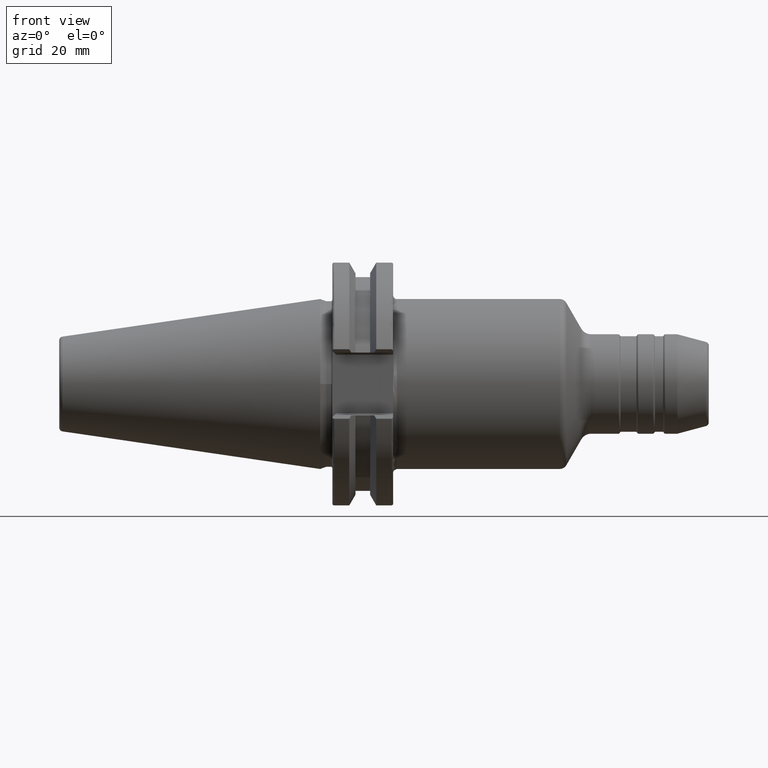
[diagram: clean part render]
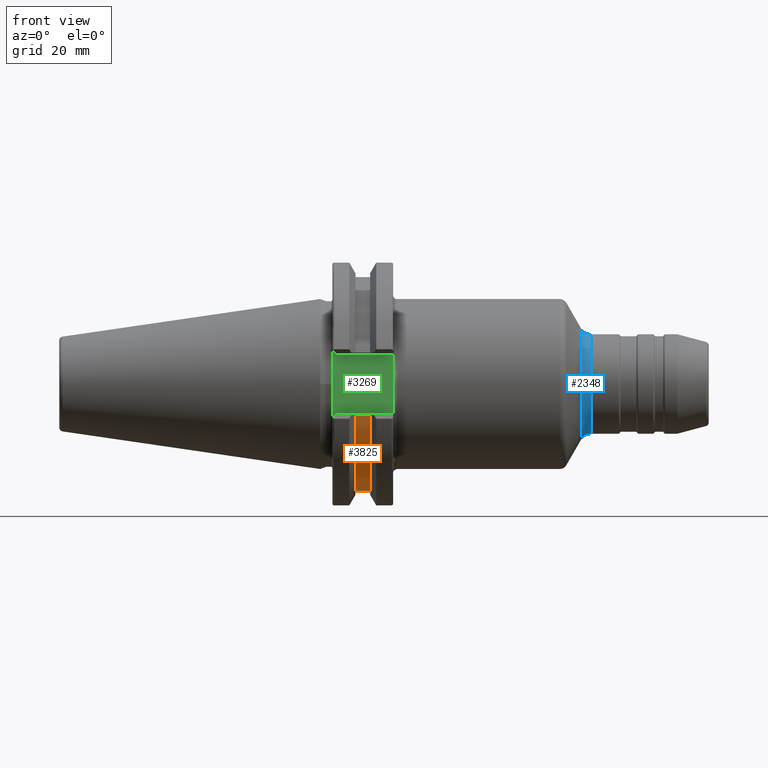
[diagram: same view with three faces highlighted in distinct colors, each labeled with its STEP entity id]
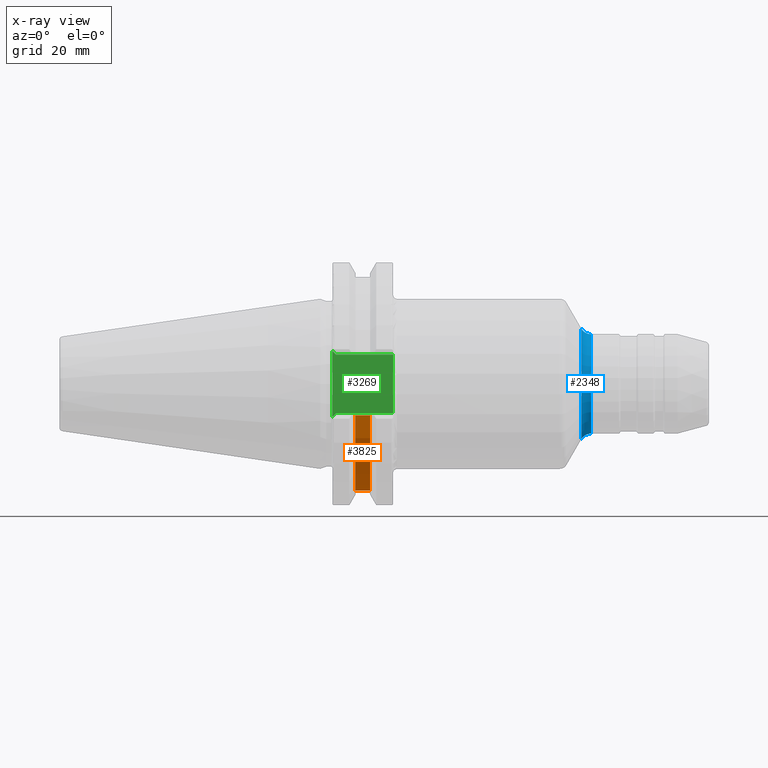
[diagram: x-ray of the same camera — body ghosted, the three highlighted faces saturated]
A machine part, front view with three faces highlighted in distinct colors.
The next image is the same camera in x-ray (body ghosted, the three faces saturated) — at least one of them is partly hidden behind the body in this view.
Their STEP definitions:

[orange] entity #3825 — the highlighted cylindrical surface (partial cylindrical patch) has radius 28.15 mm, axis along (1, 0, 0).
#1440=DIRECTION('',(1.E0,0.E0,0.E0));
#1441=VECTOR('',#1440,3.83E0);
#1442=CARTESIAN_POINT('',(9.2191E0,-2.693225575402E1,-8.19E0));
#1443=LINE('',#1442,#1441);
#1444=CARTESIAN_POINT('',(1.30491E1,0.E0,0.E0));
#1445=DIRECTION('',(1.E0,0.E0,0.E0));
#1446=DIRECTION('',(0.E0,-9.567408793613E-1,-2.909413854352E-1));
#1447=AXIS2_PLACEMENT_3D('',#1444,#1445,#1446);
#1449=DIRECTION('',(1.E0,0.E0,0.E0));
#1450=VECTOR('',#1449,3.83E0);
#1451=CARTESIAN_POINT('',(9.2191E0,2.693225575402E1,-8.19E0));
#1452=LINE('',#1451,#1450);
#1453=CARTESIAN_POINT('',(9.2191E0,0.E0,0.E0));
#1454=DIRECTION('',(-1.E0,0.E0,0.E0));
#1455=DIRECTION('',(0.E0,9.567408793613E-1,-2.909413854352E-1));
#1456=AXIS2_PLACEMENT_3D('',#1453,#1454,#1455);
#1523=CARTESIAN_POINT('',(9.2191E0,2.693225575402E1,-8.19E0));
#1525=VERTEX_POINT('',#1523);
#1528=CARTESIAN_POINT('',(1.30491E1,2.693225575402E1,-8.19E0));
#1529=VERTEX_POINT('',#1528);
#1539=CARTESIAN_POINT('',(9.2191E0,-2.693225575402E1,-8.19E0));
#1541=VERTEX_POINT('',#1539);
#1544=CARTESIAN_POINT('',(1.30491E1,-2.693225575402E1,-8.19E0));
#1545=VERTEX_POINT('',#1544);
#3813=CARTESIAN_POINT('',(0.E0,0.E0,0.E0));
#3814=DIRECTION('',(1.E0,0.E0,0.E0));
#3815=DIRECTION('',(0.E0,0.E0,1.E0));
#3816=AXIS2_PLACEMENT_3D('',#3813,#3814,#3815);
#3817=CYLINDRICAL_SURFACE('',#3816,2.815E1);
#3818=ORIENTED_EDGE('',*,*,#3296,.T.);
#3819=ORIENTED_EDGE('',*,*,#3795,.T.);
#3820=ORIENTED_EDGE('',*,*,#3376,.F.);
#3822=ORIENTED_EDGE('',*,*,#3821,.T.);
#3823=EDGE_LOOP('',(#3818,#3819,#3820,#3822));
#3824=FACE_OUTER_BOUND('',#3823,.F.);
#3825=ADVANCED_FACE('',(#3824),#3817,.T.);
#1448=CIRCLE('',#1447,2.815E1);
#1457=CIRCLE('',#1456,2.815E1);
#3296=EDGE_CURVE('',#1541,#1545,#1443,.T.);
#3376=EDGE_CURVE('',#1525,#1529,#1452,.T.);
#3795=EDGE_CURVE('',#1545,#1529,#1448,.T.);
#3821=EDGE_CURVE('',#1525,#1541,#1457,.T.);

[blue] entity #2348 — the highlighted toroidal blend (fillet) surface has major radius 16 mm and minor (blend) radius 3 mm.
#283=CARTESIAN_POINT('',(6.825897459622E1,0.E0,0.E0));
#284=DIRECTION('',(-1.E0,0.E0,0.E0));
#285=DIRECTION('',(0.E0,0.E0,-1.E0));
#286=AXIS2_PLACEMENT_3D('',#283,#284,#285);
#298=CARTESIAN_POINT('',(7.085705080757E1,0.E0,-1.6E1));
#299=DIRECTION('',(0.E0,-1.E0,0.E0));
#300=DIRECTION('',(0.E0,0.E0,1.E0));
#301=AXIS2_PLACEMENT_3D('',#298,#299,#300);
#303=CARTESIAN_POINT('',(7.085705080757E1,0.E0,1.6E1));
#304=DIRECTION('',(0.E0,1.E0,0.E0));
#305=DIRECTION('',(0.E0,0.E0,-1.E0));
#306=AXIS2_PLACEMENT_3D('',#303,#304,#305);
#308=CARTESIAN_POINT('',(7.085705080757E1,0.E0,0.E0));
#309=DIRECTION('',(-1.E0,0.E0,0.E0));
#310=DIRECTION('',(0.E0,0.E0,-1.E0));
#311=AXIS2_PLACEMENT_3D('',#308,#309,#310);
#1780=CARTESIAN_POINT('',(7.085705080757E1,0.E0,-1.3E1));
#1781=VERTEX_POINT('',#1780);
#1782=CARTESIAN_POINT('',(6.825897459622E1,0.E0,-1.45E1));
#1783=VERTEX_POINT('',#1782);
#1838=CARTESIAN_POINT('',(7.085705080757E1,0.E0,1.3E1));
#1839=VERTEX_POINT('',#1838);
#1840=CARTESIAN_POINT('',(6.825897459622E1,0.E0,1.45E1));
#1841=VERTEX_POINT('',#1840);
#2336=CARTESIAN_POINT('',(7.085705080757E1,0.E0,0.E0));
#2337=DIRECTION('',(1.E0,0.E0,0.E0));
#2338=DIRECTION('',(0.E0,0.E0,1.E0));
#2339=AXIS2_PLACEMENT_3D('',#2336,#2337,#2338);
#2340=TOROIDAL_SURFACE('',#2339,1.6E1,3.E0);
#2341=ORIENTED_EDGE('',*,*,#2326,.T.);
#2342=ORIENTED_EDGE('',*,*,#2303,.T.);
#2343=ORIENTED_EDGE('',*,*,#2330,.F.);
#2345=ORIENTED_EDGE('',*,*,#2344,.F.);
#2346=EDGE_LOOP('',(#2341,#2342,#2343,#2345));
#2347=FACE_OUTER_BOUND('',#2346,.F.);
#2348=ADVANCED_FACE('',(#2347),#2340,.F.);
#287=CIRCLE('',#286,1.45E1);
#302=CIRCLE('',#301,3.E0);
#307=CIRCLE('',#306,3.E0);
#312=CIRCLE('',#311,1.3E1);
#2303=EDGE_CURVE('',#1783,#1841,#287,.T.);
#2326=EDGE_CURVE('',#1781,#1783,#302,.T.);
#2330=EDGE_CURVE('',#1839,#1841,#307,.T.);
#2344=EDGE_CURVE('',#1781,#1839,#312,.T.);

[green] entity #3269 — the highlighted planar face has unit normal (0, 1, 0).
#900=DIRECTION('',(0.E0,0.E0,-1.E0));
#901=VECTOR('',#900,1.070338731430E1);
#902=CARTESIAN_POINT('',(1.9075E1,-2.26E1,5.351693657152E0));
#903=LINE('',#902,#901);
#904=DIRECTION('',(0.E0,0.E0,-1.E0));
#905=VECTOR('',#904,2.338306342848E0);
#906=CARTESIAN_POINT('',(1.9075E1,-2.26E1,-5.351693657152E0));
#907=LINE('',#906,#905);
#908=DIRECTION('',(1.E0,0.E0,0.E0));
#909=VECTOR('',#908,1.49E1);
#910=CARTESIAN_POINT('',(4.175E0,-2.26E1,-7.69E0));
#911=LINE('',#910,#909);
#912=DIRECTION('',(0.E0,0.E0,1.E0));
#913=VECTOR('',#912,1.738E1);
#914=CARTESIAN_POINT('',(3.175E0,-2.26E1,-8.69E0));
#915=LINE('',#914,#913);
#916=DIRECTION('',(-1.E0,0.E0,0.E0));
#917=VECTOR('',#916,1.49E1);
#918=CARTESIAN_POINT('',(1.9075E1,-2.26E1,7.69E0));
#919=LINE('',#918,#917);
#920=DIRECTION('',(0.E0,0.E0,-1.E0));
#921=VECTOR('',#920,2.338306342848E0);
#922=CARTESIAN_POINT('',(1.9075E1,-2.26E1,7.69E0));
#923=LINE('',#922,#921);
#1144=DIRECTION('',(-7.071067811865E-1,0.E0,7.071067811865E-1));
#1145=VECTOR('',#1144,1.414213562373E0);
#1146=CARTESIAN_POINT('',(4.175E0,-2.26E1,7.69E0));
#1147=LINE('',#1146,#1145);
#1505=DIRECTION('',(7.071067811865E-1,0.E0,7.071067811865E-1));
#1506=VECTOR('',#1505,1.414213562373E0);
#1507=CARTESIAN_POINT('',(3.175E0,-2.26E1,-8.69E0));
#1508=LINE('',#1507,#1506);
#1668=CARTESIAN_POINT('',(3.175E0,-2.26E1,8.69E0));
#1670=VERTEX_POINT('',#1668);
#1677=CARTESIAN_POINT('',(3.175E0,-2.26E1,-8.69E0));
#1679=VERTEX_POINT('',#1677);
#1692=CARTESIAN_POINT('',(4.175E0,-2.26E1,-7.69E0));
#1693=VERTEX_POINT('',#1692);
#1694=CARTESIAN_POINT('',(4.175E0,-2.26E1,7.69E0));
#1695=VERTEX_POINT('',#1694);
#1728=CARTESIAN_POINT('',(1.9075E1,-2.26E1,-7.69E0));
#1729=VERTEX_POINT('',#1728);
#1730=CARTESIAN_POINT('',(1.9075E1,-2.26E1,7.69E0));
#1731=VERTEX_POINT('',#1730);
#1848=CARTESIAN_POINT('',(1.9075E1,-2.26E1,5.351693657152E0));
#1849=CARTESIAN_POINT('',(1.9075E1,-2.26E1,-5.351693657152E0));
#1850=VERTEX_POINT('',#1848);
#1851=VERTEX_POINT('',#1849);
#3250=CARTESIAN_POINT('',(0.E0,-2.26E1,0.E0));
#3251=DIRECTION('',(0.E0,1.E0,0.E0));
#3252=DIRECTION('',(1.E0,0.E0,0.E0));
#3253=AXIS2_PLACEMENT_3D('',#3250,#3251,#3252);
#3254=PLANE('',#3253);
#3255=ORIENTED_EDGE('',*,*,#3244,.T.);
#3256=ORIENTED_EDGE('',*,*,#2199,.T.);
#3258=ORIENTED_EDGE('',*,*,#3257,.F.);
#3260=ORIENTED_EDGE('',*,*,#3259,.F.);
#3261=ORIENTED_EDGE('',*,*,#2047,.T.);
#3263=ORIENTED_EDGE('',*,*,#3262,.F.);
#3265=ORIENTED_EDGE('',*,*,#3264,.F.);
#3266=ORIENTED_EDGE('',*,*,#2168,.T.);
#3267=EDGE_LOOP('',(#3255,#3256,#3258,#3260,#3261,#3263,#3265,#3266));
#3268=FACE_OUTER_BOUND('',#3267,.F.);
#3269=ADVANCED_FACE('',(#3268),#3254,.F.);
#2047=EDGE_CURVE('',#1679,#1670,#915,.T.);
#2168=EDGE_CURVE('',#1731,#1850,#923,.T.);
#2199=EDGE_CURVE('',#1851,#1729,#907,.T.);
#3244=EDGE_CURVE('',#1850,#1851,#903,.T.);
#3257=EDGE_CURVE('',#1693,#1729,#911,.T.);
#3259=EDGE_CURVE('',#1679,#1693,#1508,.T.);
#3262=EDGE_CURVE('',#1695,#1670,#1147,.T.);
#3264=EDGE_CURVE('',#1731,#1695,#919,.T.);